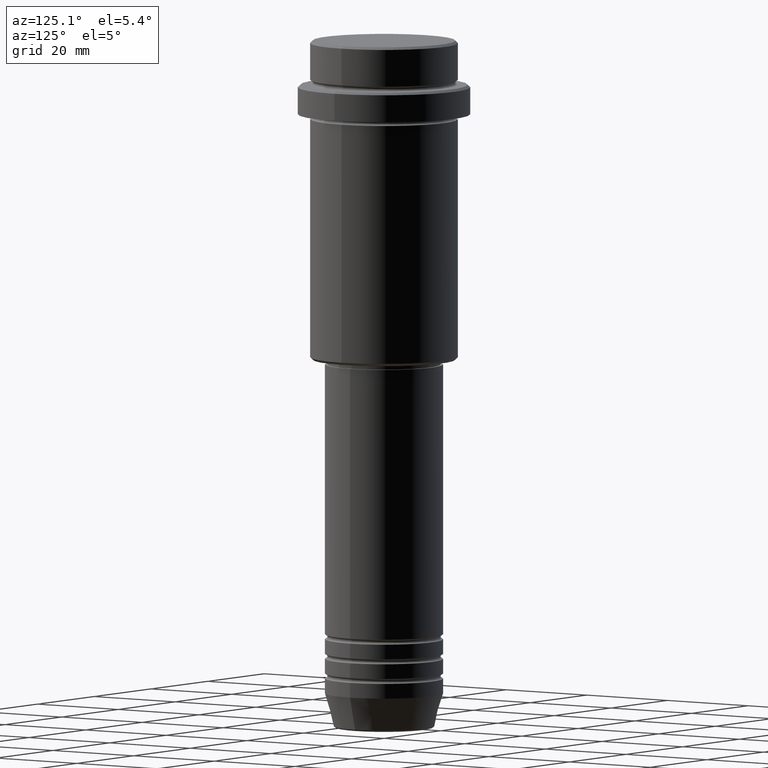
[diagram: clean part render]
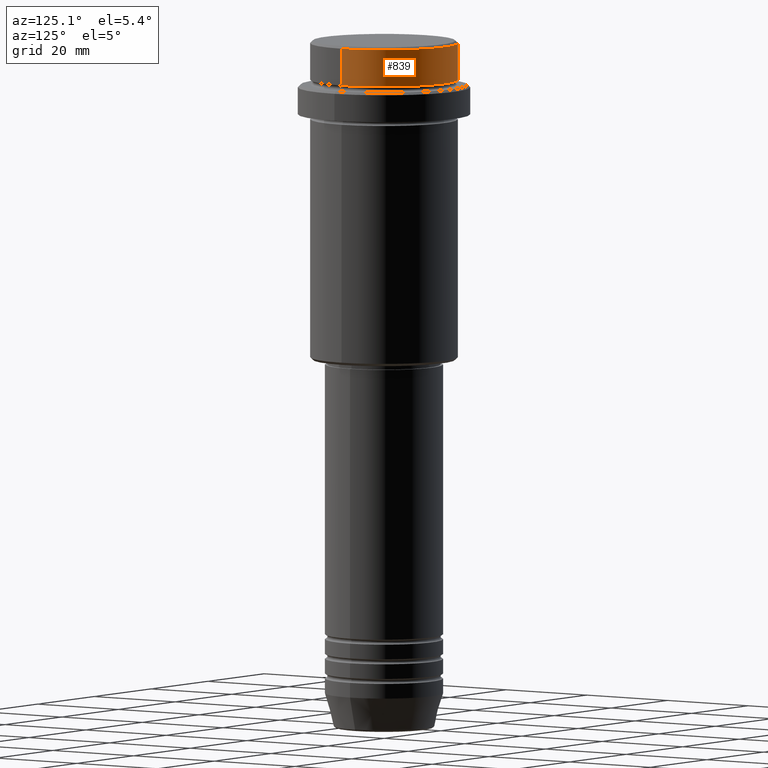
[diagram: same view with one face highlighted and labeled with its STEP entity id]
A machine part, auxiliary view. The second image highlights one B-rep face of the part: STEP entity #839.
In plain terms, the highlighted cylindrical surface (partial cylindrical patch) has radius 15 mm, axis along (-0, -0, 1).
Its self-contained STEP definition (entity closure, byte-faithful):
#33 = CIRCLE ( 'NONE', #162, 15.00000000000000000 ) ;
#98 = CARTESIAN_POINT ( 'NONE',  ( 0.000000000000000000, 0.000000000000000000, -0.4999999999999970024 ) ) ;
#108 = VERTEX_POINT ( 'NONE', #207 ) ;
#121 = AXIS2_PLACEMENT_3D ( 'NONE', #1163, #1134, #817 ) ;
#149 = CARTESIAN_POINT ( 'NONE',  ( 15.00000000000000000, 0.000000000000000000, -7.999999999999998224 ) ) ;
#162 = AXIS2_PLACEMENT_3D ( 'NONE', #359, #461, #684 ) ;
#207 = CARTESIAN_POINT ( 'NONE',  ( -15.00000000000000000, 1.836970198721029589E-15, -0.4999999999999970024 ) ) ;
#265 = CYLINDRICAL_SURFACE ( 'NONE', #121, 15.00000000000000000 ) ;
#268 = FACE_OUTER_BOUND ( 'NONE', #533, .T. ) ;
#331 = EDGE_CURVE ( 'NONE', #1312, #690, #33, .T. ) ;
#356 = EDGE_CURVE ( 'NONE', #690, #108, #912, .T. ) ;
#359 = CARTESIAN_POINT ( 'NONE',  ( 0.000000000000000000, 0.000000000000000000, -7.999999999999998224 ) ) ;
#368 = VECTOR ( 'NONE', #1131, 1000.000000000000000 ) ;
#461 = DIRECTION ( 'NONE',  ( -0.000000000000000000, -0.000000000000000000, 1.000000000000000000 ) ) ;
#469 = VECTOR ( 'NONE', #701, 1000.000000000000000 ) ;
#484 = EDGE_CURVE ( 'NONE', #1312, #848, #1031, .T. ) ;
#533 = EDGE_LOOP ( 'NONE', ( #1118, #1302, #1396, #606 ) ) ;
#606 = ORIENTED_EDGE ( 'NONE', *, *, #484, .F. ) ;
#668 = CIRCLE ( 'NONE', #961, 15.00000000000000000 ) ;
#684 = DIRECTION ( 'NONE',  ( 1.000000000000000000, 0.000000000000000000, 0.000000000000000000 ) ) ;
#690 = VERTEX_POINT ( 'NONE', #794 ) ;
#701 = DIRECTION ( 'NONE',  ( -0.000000000000000000, -0.000000000000000000, 1.000000000000000000 ) ) ;
#754 = DIRECTION ( 'NONE',  ( 1.000000000000000000, 0.000000000000000000, 0.000000000000000000 ) ) ;
#794 = CARTESIAN_POINT ( 'NONE',  ( -15.00000000000000000, 1.836970198721029589E-15, -7.999999999999998224 ) ) ;
#817 = DIRECTION ( 'NONE',  ( 1.000000000000000000, 0.000000000000000000, 0.000000000000000000 ) ) ;
#828 = CARTESIAN_POINT ( 'NONE',  ( 15.00000000000000000, 0.000000000000000000, -0.4999999999999970024 ) ) ;
#839 = ADVANCED_FACE ( 'NONE', ( #268 ), #265, .T. ) ;
#848 = VERTEX_POINT ( 'NONE', #828 ) ;
#912 = LINE ( 'NONE', #1344, #368 ) ;
#961 = AXIS2_PLACEMENT_3D ( 'NONE', #98, #1065, #754 ) ;
#1031 = LINE ( 'NONE', #1247, #469 ) ;
#1063 = EDGE_CURVE ( 'NONE', #108, #848, #668, .T. ) ;
#1065 = DIRECTION ( 'NONE',  ( 0.000000000000000000, 0.000000000000000000, -1.000000000000000000 ) ) ;
#1118 = ORIENTED_EDGE ( 'NONE', *, *, #331, .T. ) ;
#1131 = DIRECTION ( 'NONE',  ( -0.000000000000000000, -0.000000000000000000, 1.000000000000000000 ) ) ;
#1134 = DIRECTION ( 'NONE',  ( -0.000000000000000000, -0.000000000000000000, 1.000000000000000000 ) ) ;
#1163 = CARTESIAN_POINT ( 'NONE',  ( 0.000000000000000000, 0.000000000000000000, 0.000000000000000000 ) ) ;
#1247 = CARTESIAN_POINT ( 'NONE',  ( 15.00000000000000000, 0.000000000000000000, 0.000000000000000000 ) ) ;
#1302 = ORIENTED_EDGE ( 'NONE', *, *, #356, .T. ) ;
#1312 = VERTEX_POINT ( 'NONE', #149 ) ;
#1344 = CARTESIAN_POINT ( 'NONE',  ( -15.00000000000000000, 1.836970198721029589E-15, 0.000000000000000000 ) ) ;
#1396 = ORIENTED_EDGE ( 'NONE', *, *, #1063, .T. ) ;